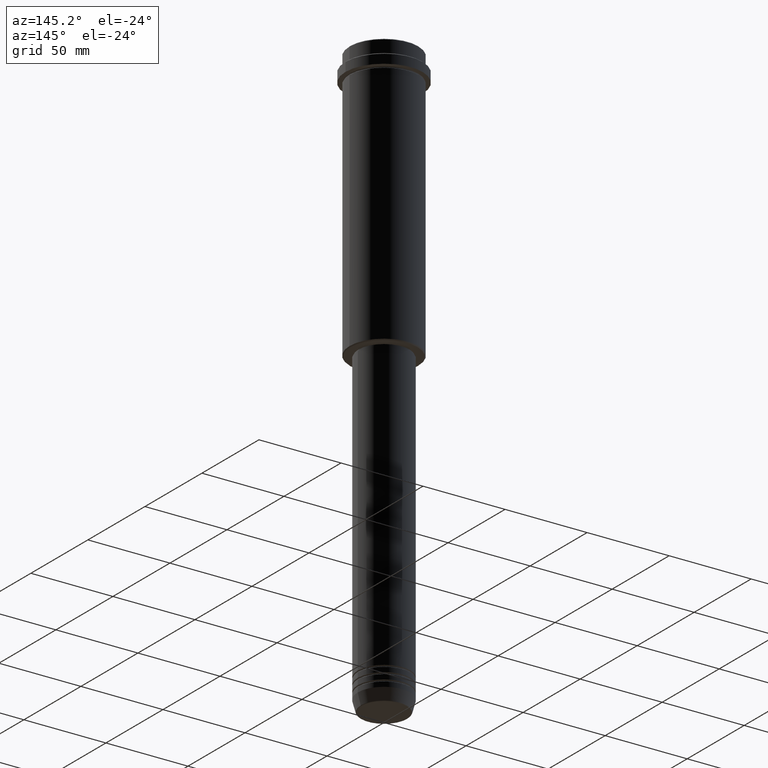
[diagram: clean part render]
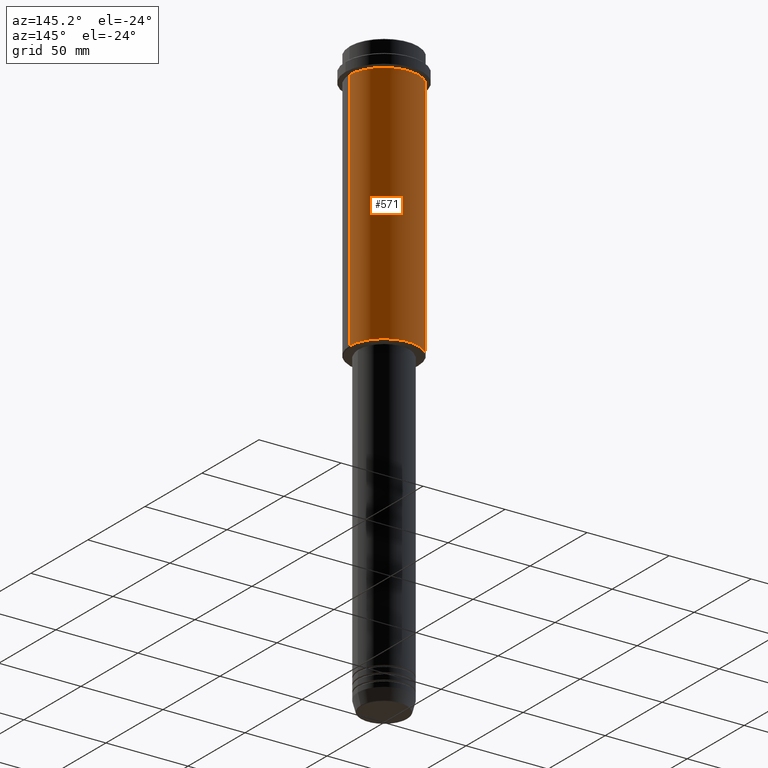
[diagram: same view with one face highlighted and labeled with its STEP entity id]
A machine part, auxiliary view. The second image highlights one B-rep face of the part: STEP entity #571.
In plain terms, the highlighted cylindrical surface (partial cylindrical patch) has radius 21 mm, axis along (-0, -0, 1).
Its self-contained STEP definition (entity closure, byte-faithful):
#31 = CARTESIAN_POINT ( 'NONE',  ( 20.99999999999999645, 0.000000000000000000, -16.00000000000000355 ) ) ;
#68 = DIRECTION ( 'NONE',  ( -0.000000000000000000, -0.000000000000000000, 1.000000000000000000 ) ) ;
#85 = CARTESIAN_POINT ( 'NONE',  ( -20.99999999999999645, 2.571758278209441267E-15, 0.000000000000000000 ) ) ;
#153 = VERTEX_POINT ( 'NONE', #1124 ) ;
#160 = ORIENTED_EDGE ( 'NONE', *, *, #222, .F. ) ;
#222 = EDGE_CURVE ( 'NONE', #909, #153, #777, .T. ) ;
#223 = FACE_OUTER_BOUND ( 'NONE', #1322, .T. ) ;
#321 = DIRECTION ( 'NONE',  ( -0.000000000000000000, -0.000000000000000000, 1.000000000000000000 ) ) ;
#349 = VERTEX_POINT ( 'NONE', #693 ) ;
#366 = EDGE_CURVE ( 'NONE', #785, #349, #600, .T. ) ;
#372 = CARTESIAN_POINT ( 'NONE',  ( 0.000000000000000000, 0.000000000000000000, -16.00000000000000355 ) ) ;
#401 = LINE ( 'NONE', #85, #601 ) ;
#402 = DIRECTION ( 'NONE',  ( -1.000000000000000000, 0.000000000000000000, 0.000000000000000000 ) ) ;
#414 = AXIS2_PLACEMENT_3D ( 'NONE', #1190, #633, #538 ) ;
#484 = AXIS2_PLACEMENT_3D ( 'NONE', #372, #68, #588 ) ;
#489 = DIRECTION ( 'NONE',  ( -0.000000000000000000, -0.000000000000000000, 1.000000000000000000 ) ) ;
#538 = DIRECTION ( 'NONE',  ( 1.000000000000000000, 0.000000000000000000, 0.000000000000000000 ) ) ;
#543 = CARTESIAN_POINT ( 'NONE',  ( 0.000000000000000000, 0.000000000000000000, -164.5000000000001137 ) ) ;
#571 = ADVANCED_FACE ( 'NONE', ( #223 ), #861, .T. ) ;
#588 = DIRECTION ( 'NONE',  ( 1.000000000000000000, 0.000000000000000000, 0.000000000000000000 ) ) ;
#600 = CIRCLE ( 'NONE', #1311, 20.99999999999999645 ) ;
#601 = VECTOR ( 'NONE', #948, 1000.000000000000000 ) ;
#633 = DIRECTION ( 'NONE',  ( -0.000000000000000000, -0.000000000000000000, 1.000000000000000000 ) ) ;
#693 = CARTESIAN_POINT ( 'NONE',  ( -20.99999999999999645, 2.571758278209441267E-15, -164.5000000000001137 ) ) ;
#737 = EDGE_CURVE ( 'NONE', #349, #153, #401, .T. ) ;
#777 = CIRCLE ( 'NONE', #484, 20.99999999999999645 ) ;
#785 = VERTEX_POINT ( 'NONE', #1364 ) ;
#804 = EDGE_CURVE ( 'NONE', #785, #909, #1034, .T. ) ;
#824 = VECTOR ( 'NONE', #489, 1000.000000000000000 ) ;
#861 = CYLINDRICAL_SURFACE ( 'NONE', #414, 20.99999999999999645 ) ;
#909 = VERTEX_POINT ( 'NONE', #31 ) ;
#936 = ORIENTED_EDGE ( 'NONE', *, *, #804, .F. ) ;
#948 = DIRECTION ( 'NONE',  ( -0.000000000000000000, -0.000000000000000000, 1.000000000000000000 ) ) ;
#980 = ORIENTED_EDGE ( 'NONE', *, *, #737, .T. ) ;
#1034 = LINE ( 'NONE', #1375, #824 ) ;
#1124 = CARTESIAN_POINT ( 'NONE',  ( -20.99999999999999645, 2.571758278209441267E-15, -16.00000000000000355 ) ) ;
#1186 = ORIENTED_EDGE ( 'NONE', *, *, #366, .T. ) ;
#1190 = CARTESIAN_POINT ( 'NONE',  ( 0.000000000000000000, 0.000000000000000000, 0.000000000000000000 ) ) ;
#1311 = AXIS2_PLACEMENT_3D ( 'NONE', #543, #321, #402 ) ;
#1322 = EDGE_LOOP ( 'NONE', ( #1186, #980, #160, #936 ) ) ;
#1364 = CARTESIAN_POINT ( 'NONE',  ( 20.99999999999999645, 0.000000000000000000, -164.5000000000001137 ) ) ;
#1375 = CARTESIAN_POINT ( 'NONE',  ( 20.99999999999999645, 0.000000000000000000, 0.000000000000000000 ) ) ;